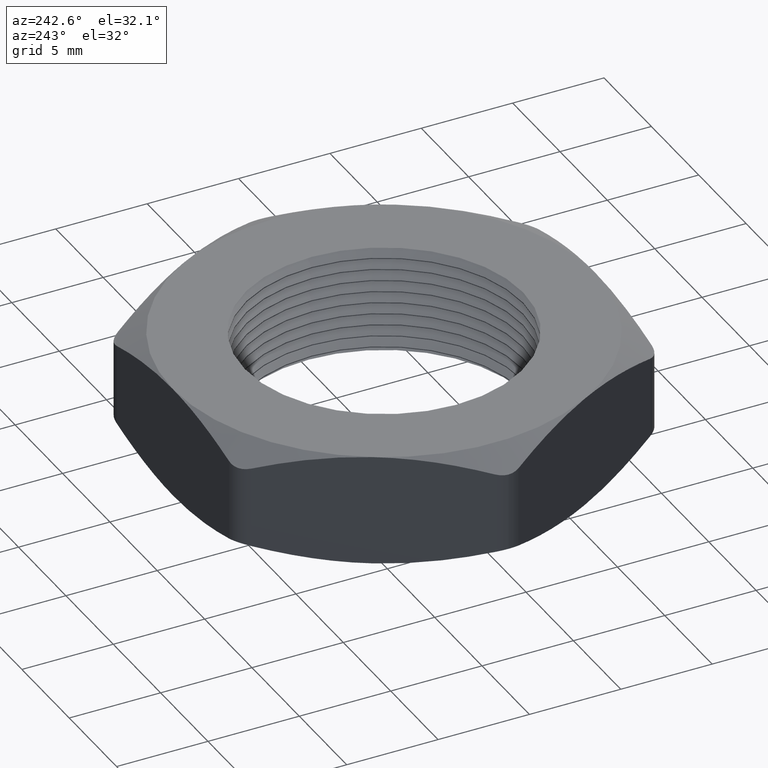
[diagram: clean part render]
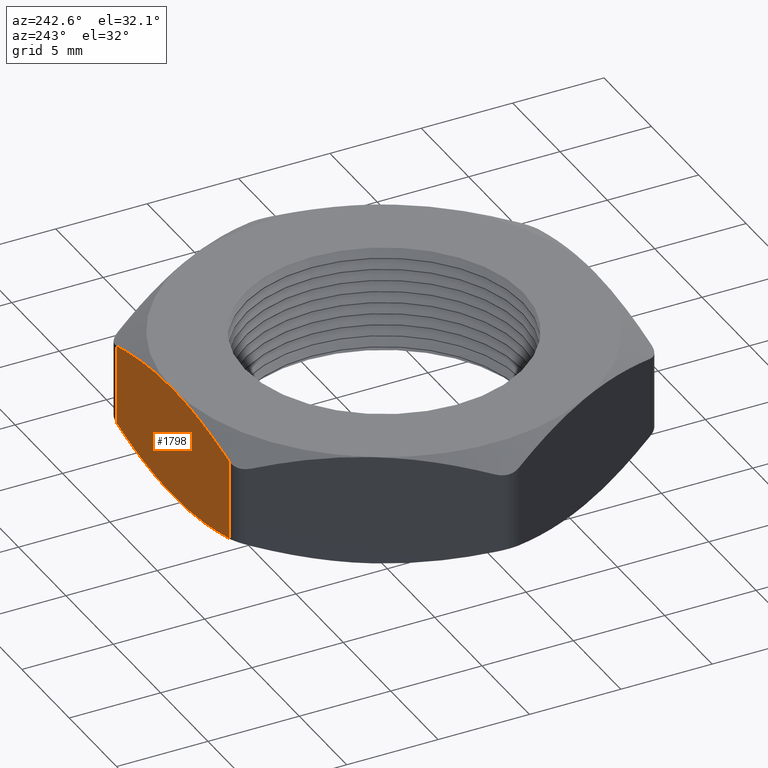
[diagram: same view with one face highlighted and labeled with its STEP entity id]
A machine part, auxiliary view. The second image highlights one B-rep face of the part: STEP entity #1798.
In plain terms, the highlighted planar face has unit normal (0, -1, 0).
Its self-contained STEP definition (entity closure, byte-faithful):
#628 = CARTESIAN_POINT ( 'NONE',  ( -0.1565382832308648600, 0.4550000000000000700, 0.01491589011174662700 ) ) ;
#629 = CARTESIAN_POINT ( 'NONE',  ( -0.1953054508661751200, 0.4550000000000000700, 0.02298747778347459300 ) ) ;
#630 = CARTESIAN_POINT ( 'NONE',  ( -0.2146741691584045700, 0.4550000000000000200, 0.02760421601904869400 ) ) ;
#631 = CARTESIAN_POINT ( 'NONE',  ( -0.2338268590218040800, 0.4550000000000000700, 0.03265852378576873000 ) ) ;
#632 = LINE ( 'NONE', #677, #676 ) ;
#633 = CARTESIAN_POINT ( 'NONE',  ( -0.2338268590218040800, 0.4550000000000000700, 0.03265852378576873000 ) ) ;
#634 = B_SPLINE_CURVE_WITH_KNOTS ( 'NONE', 3,
 ( #631, #630, #629, #628, #681, #680, #679, #678 ),
 .UNSPECIFIED., .F., .F.,
 ( 4, 2, 2, 4 ),
 ( 0.01297327125695931600, 0.01447242820131362300, 0.01597158514566792900, 0.01896989903437654200 ),
 .UNSPECIFIED. ) ;
#635 = DIRECTION ( 'NONE',  ( 0.0000000000000000000, 0.0000000000000000000, -1.000000000000000000 ) ) ;
#636 = DIRECTION ( 'NONE',  ( 0.0000000000000000000, -1.000000000000000000, 0.0000000000000000000 ) ) ;
#637 = CARTESIAN_POINT ( 'NONE',  ( 0.2626943724812798000, 0.4550000000000000700, 0.2399999999999999900 ) ) ;
#646 = AXIS2_PLACEMENT_3D ( 'NONE', #637, #636, #635 ) ;
#648 = PLANE ( 'NONE',  #646 ) ;
#649 = FACE_OUTER_BOUND ( 'NONE', #1799, .T. ) ;
#674 = CARTESIAN_POINT ( 'NONE',  ( -0.2338268590218040300, 0.4550000000000000700, 0.2073414762142313000 ) ) ;
#675 = DIRECTION ( 'NONE',  ( 0.0000000000000000000, 0.0000000000000000000, 1.000000000000000000 ) ) ;
#676 = VECTOR ( 'NONE', #675, 39.37007874015748100 ) ;
#677 = CARTESIAN_POINT ( 'NONE',  ( -0.2338268590217985300, 0.4550000000000000700, 0.2399999999999999900 ) ) ;
#678 = CARTESIAN_POINT ( 'NONE',  ( 0.0000000000000000000, 0.4550000000000000700, 0.0000000000000000000 ) ) ;
#679 = CARTESIAN_POINT ( 'NONE',  ( -0.03945005728100817900, 0.4550000000000000700, 4.428581708479175400E-017 ) ) ;
#680 = CARTESIAN_POINT ( 'NONE',  ( -0.07864598926684844600, 0.4550000000000000700, 0.003003698492828583500 ) ) ;
#681 = CARTESIAN_POINT ( 'NONE',  ( -0.1371063905079153400, 0.4550000000000001300, 0.01145109565603988700 ) ) ;
#831 = CARTESIAN_POINT ( 'NONE',  ( -0.2338268590218040300, 0.4550000000000000700, 0.2073414762142313000 ) ) ;
#832 = CARTESIAN_POINT ( 'NONE',  ( -0.2146741691584046500, 0.4550000000000001300, 0.2123957839809513000 ) ) ;
#833 = CARTESIAN_POINT ( 'NONE',  ( -0.1953054508661751200, 0.4550000000000001300, 0.2170125222165253900 ) ) ;
#834 = CARTESIAN_POINT ( 'NONE',  ( -0.1565382832308648600, 0.4550000000000001300, 0.2250841098882533600 ) ) ;
#835 = CARTESIAN_POINT ( 'NONE',  ( -0.1371063905079154000, 0.4550000000000000700, 0.2285489043439601400 ) ) ;
#836 = CARTESIAN_POINT ( 'NONE',  ( -0.07864598926684844600, 0.4550000000000000700, 0.2369963015071713800 ) ) ;
#837 = CARTESIAN_POINT ( 'NONE',  ( -0.03945005728100801900, 0.4549999999999999000, 0.2399999999999999900 ) ) ;
#838 = CARTESIAN_POINT ( 'NONE',  ( 0.0000000000000000000, 0.4550000000000000700, 0.2399999999999999900 ) ) ;
#839 = CARTESIAN_POINT ( 'NONE',  ( 0.0000000000000000000, 0.4550000000000000700, 0.2399999999999999900 ) ) ;
#840 = B_SPLINE_CURVE_WITH_KNOTS ( 'NONE', 3,
 ( #838, #837, #836, #835, #834, #833, #832, #831 ),
 .UNSPECIFIED., .F., .F.,
 ( 4, 2, 2, 4 ),
 ( 0.04075510468871172000, 0.04375383650408408400, 0.04525320241177026300, 0.04675256831945644200 ),
 .UNSPECIFIED. ) ;
#966 = CARTESIAN_POINT ( 'NONE',  ( 0.2338268590217984200, 0.4550000000000000700, 0.03265852378576768200 ) ) ;
#967 = DIRECTION ( 'NONE',  ( 0.0000000000000000000, 0.0000000000000000000, -1.000000000000000000 ) ) ;
#968 = VECTOR ( 'NONE', #967, 39.37007874015748100 ) ;
#969 = CARTESIAN_POINT ( 'NONE',  ( 0.2338268590217984800, 0.4550000000000000700, 0.2399999999999999900 ) ) ;
#970 = CARTESIAN_POINT ( 'NONE',  ( 0.0000000000000000000, 0.4550000000000000700, 0.2399999999999999900 ) ) ;
#971 = CARTESIAN_POINT ( 'NONE',  ( 0.01971938371102654300, 0.4550000000000001300, 0.2399999999999999900 ) ) ;
#972 = CARTESIAN_POINT ( 'NONE',  ( 0.03950165002534824400, 0.4550000000000001300, 0.2392567430935265700 ) ) ;
#973 = CARTESIAN_POINT ( 'NONE',  ( 0.07919115913705905600, 0.4550000000000001300, 0.2362930379857086100 ) ) ;
#974 = CARTESIAN_POINT ( 'NONE',  ( 0.09892662905982897700, 0.4550000000000000700, 0.2340842059643829800 ) ) ;
#975 = CARTESIAN_POINT ( 'NONE',  ( 0.1575169372416702100, 0.4550000000000000700, 0.2255615929668068300 ) ) ;
#976 = CARTESIAN_POINT ( 'NONE',  ( 0.1959085919042605200, 0.4549999999999999000, 0.2173479344903084500 ) ) ;
#977 = CARTESIAN_POINT ( 'NONE',  ( 0.2338268590217984500, 0.4550000000000000700, 0.2073414762142323000 ) ) ;
#978 = CARTESIAN_POINT ( 'NONE',  ( 0.2338268590217984500, 0.4550000000000000700, 0.2073414762142323000 ) ) ;
#979 = B_SPLINE_CURVE_WITH_KNOTS ( 'NONE', 3,
 ( #977, #976, #975, #974, #973, #972, #971, #970 ),
 .UNSPECIFIED., .F., .F.,
 ( 4, 2, 2, 4 ),
 ( 0.03475935741842745700, 0.03775723105356958800, 0.03925616787114065400, 0.04075510468871172000 ),
 .UNSPECIFIED. ) ;
#980 = LINE ( 'NONE', #969, #968 ) ;
#1016 = CARTESIAN_POINT ( 'NONE',  ( 0.2338268590217984200, 0.4550000000000000700, 0.03265852378576768200 ) ) ;
#1017 = CARTESIAN_POINT ( 'NONE',  ( 0.1959085919042606000, 0.4550000000000001800, 0.02265206550969154100 ) ) ;
#1018 = CARTESIAN_POINT ( 'NONE',  ( 0.1575169372416702900, 0.4550000000000001300, 0.01443840703319314800 ) ) ;
#1019 = CARTESIAN_POINT ( 'NONE',  ( 0.09892662905982896300, 0.4550000000000001300, 0.005915794035617039100 ) ) ;
#1020 = CARTESIAN_POINT ( 'NONE',  ( 0.07919115913705908300, 0.4550000000000000700, 0.003706962014291358700 ) ) ;
#1021 = CARTESIAN_POINT ( 'NONE',  ( 0.03950165002534820900, 0.4550000000000000700, 0.0007432569064734339400 ) ) ;
#1022 = CARTESIAN_POINT ( 'NONE',  ( 0.01971938371102641500, 0.4550000000000002900, 3.752733897546613000E-017 ) ) ;
#1023 = CARTESIAN_POINT ( 'NONE',  ( 0.0000000000000000000, 0.4550000000000000700, 0.0000000000000000000 ) ) ;
#1025 = B_SPLINE_CURVE_WITH_KNOTS ( 'NONE', 3,
 ( #1023, #1022, #1021, #1020, #1019, #1018, #1017, #1016 ),
 .UNSPECIFIED., .F., .F.,
 ( 4, 2, 2, 4 ),
 ( 0.01896989903437654200, 0.02046862694841708500, 0.02196735486245762400, 0.02496481069053870700 ),
 .UNSPECIFIED. ) ;
#1441 = VERTEX_POINT ( 'NONE', #2460 ) ;
#1798 = ADVANCED_FACE ( 'NONE', ( #649 ), #648, .F. ) ;
#1799 = EDGE_LOOP ( 'NONE', ( #1800, #1803, #1928, #1993, #1996, #1999 ) ) ;
#1800 = ORIENTED_EDGE ( 'NONE', *, *, #1801, .F. ) ;
#1801 = EDGE_CURVE ( 'NONE', #1802, #1441, #634, .T. ) ;
#1802 = VERTEX_POINT ( 'NONE', #633 ) ;
#1803 = ORIENTED_EDGE ( 'NONE', *, *, #1804, .T. ) ;
#1804 = EDGE_CURVE ( 'NONE', #1802, #1805, #632, .T. ) ;
#1805 = VERTEX_POINT ( 'NONE', #674 ) ;
#1928 = ORIENTED_EDGE ( 'NONE', *, *, #1929, .F. ) ;
#1929 = EDGE_CURVE ( 'NONE', #1930, #1805, #840, .T. ) ;
#1930 = VERTEX_POINT ( 'NONE', #839 ) ;
#1993 = ORIENTED_EDGE ( 'NONE', *, *, #1994, .F. ) ;
#1994 = EDGE_CURVE ( 'NONE', #1995, #1930, #979, .T. ) ;
#1995 = VERTEX_POINT ( 'NONE', #978 ) ;
#1996 = ORIENTED_EDGE ( 'NONE', *, *, #1997, .T. ) ;
#1997 = EDGE_CURVE ( 'NONE', #1995, #1998, #980, .T. ) ;
#1998 = VERTEX_POINT ( 'NONE', #966 ) ;
#1999 = ORIENTED_EDGE ( 'NONE', *, *, #2000, .F. ) ;
#2000 = EDGE_CURVE ( 'NONE', #1441, #1998, #1025, .T. ) ;
#2460 = CARTESIAN_POINT ( 'NONE',  ( 0.0000000000000000000, 0.4550000000000000700, 0.0000000000000000000 ) ) ;